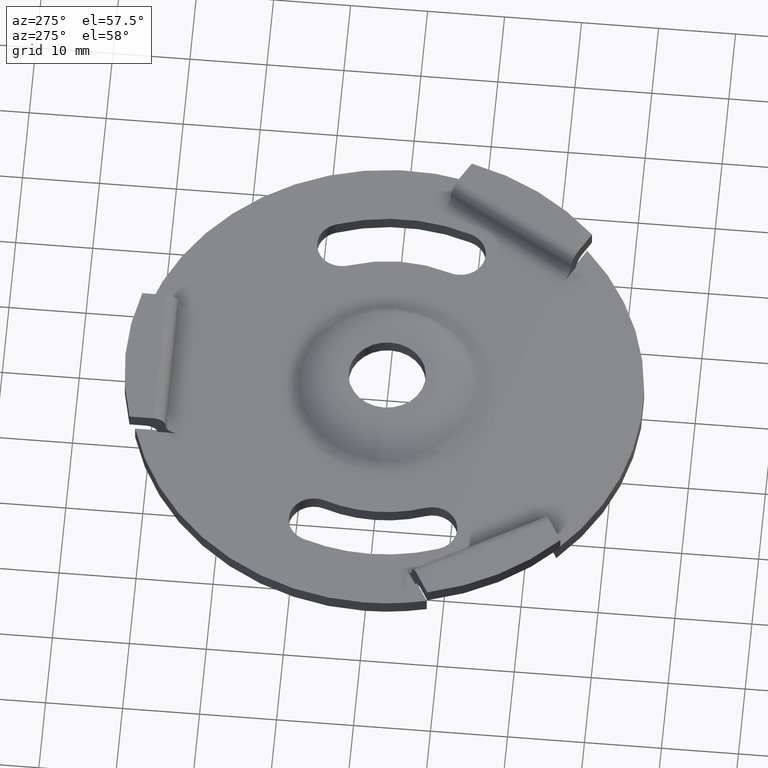
[diagram: clean part render]
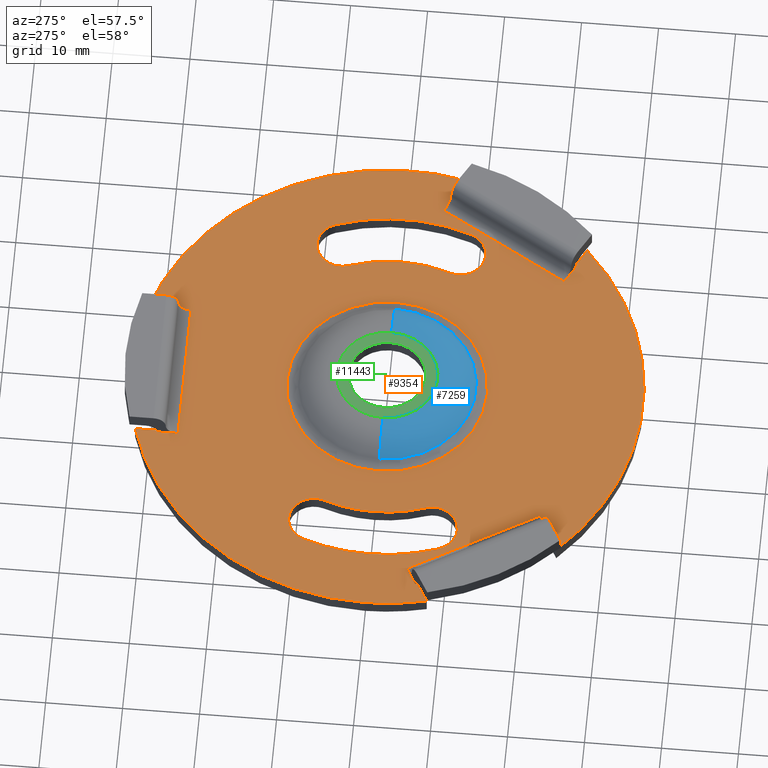
[diagram: same view with three faces highlighted in distinct colors, each labeled with its STEP entity id]
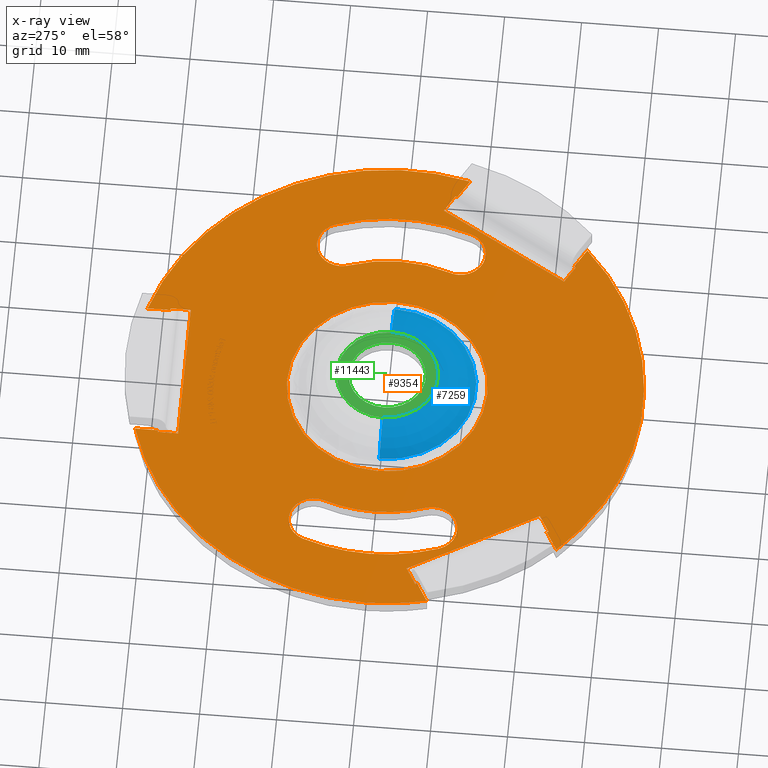
[diagram: x-ray of the same camera — body ghosted, the three highlighted faces saturated]
A machine part, auxiliary view with three faces highlighted in distinct colors.
The next image is the same camera in x-ray (body ghosted, the three faces saturated) — at least one of them is partly hidden behind the body in this view.
Their STEP definitions:

[orange] entity #9354 — the highlighted planar face has unit normal (0, 0, 1).
#14 = EDGE_CURVE ( 'NONE', #11242, #5522, #7318, .T. ) ;
#139 = CARTESIAN_POINT ( 'NONE',  ( -9.500000000000000000, 28.96581548079245749, 2.000000000000000000 ) ) ;
#187 = CIRCLE ( 'NONE', #1291, 19.25000000000013500 ) ;
#209 = DIRECTION ( 'NONE',  ( -0.8660254037844432595, 0.4999999999999919509, 0.000000000000000000 ) ) ;
#330 = CARTESIAN_POINT ( 'NONE',  ( -9.500000000000000000, 26.33743884534262847, 2.000000000000000000 ) ) ;
#425 = VERTEX_POINT ( 'NONE', #13483 ) ;
#433 = ORIENTED_EDGE ( 'NONE', *, *, #13645, .F. ) ;
#537 = ORIENTED_EDGE ( 'NONE', *, *, #2630, .T. ) ;
#637 = EDGE_CURVE ( 'NONE', #11732, #8392, #2801, .T. ) ;
#709 = CARTESIAN_POINT ( 'NONE',  ( 27.55889111068585251, -4.941478086718892548, 2.000000000000000000 ) ) ;
#744 = DIRECTION ( 'NONE',  ( -0.8660254037844363761, -0.5000000000000039968, 0.000000000000000000 ) ) ;
#751 = CIRCLE ( 'NONE', #5818, 19.25000000000013500 ) ;
#918 = CARTESIAN_POINT ( 'NONE',  ( -4.624999999999923617, -8.010734985006095599, 2.000000000000000000 ) ) ;
#936 = CARTESIAN_POINT ( 'NONE',  ( 20.46013204769904092, -22.49364272540208631, 2.000000000000000000 ) ) ;
#1025 = VERTEX_POINT ( 'NONE', #16962 ) ;
#1075 = DIRECTION ( 'NONE',  ( 1.000000000000000000, 0.000000000000000000, -0.000000000000000000 ) ) ;
#1083 = AXIS2_PLACEMENT_3D ( 'NONE', #8190, #9336, #6806 ) ;
#1104 = DIRECTION ( 'NONE',  ( -0.5000000000000041078, 0.8660254037844363761, 0.000000000000000000 ) ) ;
#1144 = VECTOR ( 'NONE', #10213, 1000.000000000000114 ) ;
#1161 = ORIENTED_EDGE ( 'NONE', *, *, #1848, .T. ) ;
#1291 = AXIS2_PLACEMENT_3D ( 'NONE', #11788, #1412, #6431 ) ;
#1314 = EDGE_CURVE ( 'NONE', #6346, #11591, #8154, .T. ) ;
#1322 = LINE ( 'NONE', #15483, #2964 ) ;
#1412 = DIRECTION ( 'NONE',  ( -0.000000000000000000, -0.000000000000000000, -1.000000000000000000 ) ) ;
#1442 = CARTESIAN_POINT ( 'NONE',  ( -29.71013204769881710, -6.472172755390321441, 2.000000000000000000 ) ) ;
#1453 = DIRECTION ( 'NONE',  ( -0.8660254037844374864, -0.5000000000000019984, 0.000000000000000000 ) ) ;
#1466 = VERTEX_POINT ( 'NONE', #8371 ) ;
#1523 = ORIENTED_EDGE ( 'NONE', *, *, #14598, .F. ) ;
#1582 = ORIENTED_EDGE ( 'NONE', *, *, #2095, .T. ) ;
#1651 = CARTESIAN_POINT ( 'NONE',  ( 21.14308396768296205, -7.695453224827473626, 2.000000000000000000 ) ) ;
#1668 = EDGE_CURVE ( 'NONE', #11591, #3075, #4637, .T. ) ;
#1693 = AXIS2_PLACEMENT_3D ( 'NONE', #7420, #8748, #3515 ) ;
#1726 = FACE_BOUND ( 'NONE', #10439, .T. ) ;
#1763 = DIRECTION ( 'NONE',  ( 1.000000000000000000, 0.000000000000000000, 0.000000000000000000 ) ) ;
#1848 = EDGE_CURVE ( 'NONE', #13175, #5613, #4014, .T. ) ;
#1859 = CARTESIAN_POINT ( 'NONE',  ( -18.05889111068571040, -21.39596075862357338, 2.000000000000000000 ) ) ;
#1868 = DIRECTION ( 'NONE',  ( -0.8660254037844363761, -0.5000000000000038858, 0.000000000000000000 ) ) ;
#1917 = CIRCLE ( 'NONE', #4845, 25.74999999999985789 ) ;
#2026 = DIRECTION ( 'NONE',  ( 1.000000000000000000, 0.000000000000000000, 0.000000000000000000 ) ) ;
#2029 = ORIENTED_EDGE ( 'NONE', *, *, #1668, .F. ) ;
#2030 = CARTESIAN_POINT ( 'NONE',  ( 29.83513204769888816, -6.255666404443783968, 2.000000000000000000 ) ) ;
#2077 = EDGE_CURVE ( 'NONE', #6993, #13175, #13273, .T. ) ;
#2095 = EDGE_CURVE ( 'NONE', #15615, #16457, #2603, .T. ) ;
#2106 = ORIENTED_EDGE ( 'NONE', *, *, #8341, .T. ) ;
#2111 = EDGE_CURVE ( 'NONE', #3075, #7814, #15947, .T. ) ;
#2333 = EDGE_CURVE ( 'NONE', #13516, #9541, #7922, .T. ) ;
#2423 = CARTESIAN_POINT ( 'NONE',  ( 9.500000000000000000, 28.96581548079246105, 2.000000000000000000 ) ) ;
#2494 = CARTESIAN_POINT ( 'NONE',  ( 0.000000000000000000, 0.000000000000000000, 2.000000000000000000 ) ) ;
#2501 = CARTESIAN_POINT ( 'NONE',  ( -27.55889111068578856, -4.941478086719275353, 2.000000000009549694 ) ) ;
#2585 = ORIENTED_EDGE ( 'NONE', *, *, #3936, .F. ) ;
#2592 = CARTESIAN_POINT ( 'NONE',  ( -21.14308396768296205, 7.695453224827473626, 2.000000000000000000 ) ) ;
#2603 = CIRCLE ( 'NONE', #2870, 33.25000000000000000 ) ;
#2630 = EDGE_CURVE ( 'NONE', #16829, #6113, #15720, .T. ) ;
#2687 = ORIENTED_EDGE ( 'NONE', *, *, #14, .F. ) ;
#2801 = LINE ( 'NONE', #7748, #7523 ) ;
#2870 = AXIS2_PLACEMENT_3D ( 'NONE', #14941, #16156, #2960 ) ;
#2896 = ORIENTED_EDGE ( 'NONE', *, *, #4411, .F. ) ;
#2937 = DIRECTION ( 'NONE',  ( 1.000000000000000000, 0.000000000000000000, 0.000000000000000000 ) ) ;
#2960 = DIRECTION ( 'NONE',  ( 1.000000000000000000, 0.000000000000000000, 0.000000000000000000 ) ) ;
#2964 = VECTOR ( 'NONE', #11695, 1000.000000000000000 ) ;
#2995 = EDGE_CURVE ( 'NONE', #11053, #1025, #751, .T. ) ;
#3022 = VECTOR ( 'NONE', #209, 1000.000000000000114 ) ;
#3053 = CARTESIAN_POINT ( 'NONE',  ( 1.471248585008598092E-13, 4.838270413349675722E-14, 2.000000000000000000 ) ) ;
#3075 = VERTEX_POINT ( 'NONE', #11131 ) ;
#3165 = VECTOR ( 'NONE', #9782, 1000.000000000000000 ) ;
#3194 = CARTESIAN_POINT ( 'NONE',  ( 21.14308396768296205, 7.695453224827473626, 2.000000000000000000 ) ) ;
#3301 = EDGE_CURVE ( 'NONE', #8392, #4935, #4193, .T. ) ;
#3418 = LINE ( 'NONE', #8247, #16972 ) ;
#3515 = DIRECTION ( 'NONE',  ( -1.000000000000000000, 0.000000000000000000, 0.000000000000000000 ) ) ;
#3550 = LINE ( 'NONE', #12523, #6846 ) ;
#3647 = CARTESIAN_POINT ( 'NONE',  ( 18.05889111068600883, -21.39596075862331048, 2.000000000009549694 ) ) ;
#3667 = LINE ( 'NONE', #1859, #14960 ) ;
#3714 = ORIENTED_EDGE ( 'NONE', *, *, #11754, .F. ) ;
#3762 = DIRECTION ( 'NONE',  ( 0.000000000000000000, 0.000000000000000000, 1.000000000000000000 ) ) ;
#3818 = DIRECTION ( 'NONE',  ( -1.000000000000000000, 0.000000000000000000, 0.000000000000000000 ) ) ;
#3936 = EDGE_CURVE ( 'NONE', #8944, #11053, #187, .T. ) ;
#4011 = CIRCLE ( 'NONE', #13064, 3.249999999999999556 ) ;
#4014 = LINE ( 'NONE', #7975, #8548 ) ;
#4061 = VECTOR ( 'NONE', #9287, 1000.000000000000000 ) ;
#4063 = DIRECTION ( 'NONE',  ( 0.000000000000000000, 0.000000000000000000, 1.000000000000000000 ) ) ;
#4105 = DIRECTION ( 'NONE',  ( 0.000000000000000000, 0.000000000000000000, 1.000000000000000000 ) ) ;
#4166 = EDGE_CURVE ( 'NONE', #4935, #16829, #3667, .T. ) ;
#4193 = LINE ( 'NONE', #6360, #14683 ) ;
#4401 = CARTESIAN_POINT ( 'NONE',  ( -13.00000000000000000, 1.592040838891559095E-15, 2.000000000000000000 ) ) ;
#4411 = EDGE_CURVE ( 'NONE', #6736, #7944, #7153, .T. ) ;
#4412 = DIRECTION ( 'NONE',  ( 0.000000000000000000, 0.000000000000000000, 1.000000000000000000 ) ) ;
#4420 = VECTOR ( 'NONE', #1868, 1000.000000000000114 ) ;
#4637 = CIRCLE ( 'NONE', #8720, 3.250000000000002665 ) ;
#4677 = VERTEX_POINT ( 'NONE', #14904 ) ;
#4686 = CARTESIAN_POINT ( 'NONE',  ( -33.25000000000000000, 0.000000000000000000, 2.000000000000000000 ) ) ;
#4780 = FACE_BOUND ( 'NONE', #9438, .T. ) ;
#4845 = AXIS2_PLACEMENT_3D ( 'NONE', #13127, #3762, #3818 ) ;
#4921 = CARTESIAN_POINT ( 'NONE',  ( 20.46013204769903737, -22.49364272540208987, 2.000000000000000000 ) ) ;
#4935 = VERTEX_POINT ( 'NONE', #2501 ) ;
#5128 = CARTESIAN_POINT ( 'NONE',  ( 21.14308396768296205, -7.695453224827473626, 2.000000000000000000 ) ) ;
#5214 = DIRECTION ( 'NONE',  ( 1.000000000000000000, 0.000000000000000000, 0.000000000000000000 ) ) ;
#5252 = ORIENTED_EDGE ( 'NONE', *, *, #11434, .T. ) ;
#5259 = EDGE_CURVE ( 'NONE', #8290, #10061, #6496, .T. ) ;
#5268 = CARTESIAN_POINT ( 'NONE',  ( 1.471248585008598092E-13, 4.838270413349675722E-14, 2.000000000000000000 ) ) ;
#5276 = DIRECTION ( 'NONE',  ( -0.000000000000000000, -0.000000000000000000, -1.000000000000000000 ) ) ;
#5388 = CIRCLE ( 'NONE', #1083, 33.25000000000000000 ) ;
#5441 = VERTEX_POINT ( 'NONE', #16403 ) ;
#5522 = VERTEX_POINT ( 'NONE', #9551 ) ;
#5613 = VERTEX_POINT ( 'NONE', #139 ) ;
#5628 = DIRECTION ( 'NONE',  ( 0.000000000000000000, -1.000000000000000000, 0.000000000000000000 ) ) ;
#5643 = ORIENTED_EDGE ( 'NONE', *, *, #11901, .T. ) ;
#5679 = DIRECTION ( 'NONE',  ( -0.000000000000000000, -0.000000000000000000, -1.000000000000000000 ) ) ;
#5690 = AXIS2_PLACEMENT_3D ( 'NONE', #15929, #15808, #6612 ) ;
#5745 = VERTEX_POINT ( 'NONE', #2030 ) ;
#5786 = DIRECTION ( 'NONE',  ( 1.000000000000000000, 0.000000000000000000, 0.000000000000000000 ) ) ;
#5818 = AXIS2_PLACEMENT_3D ( 'NONE', #3053, #5679, #5786 ) ;
#5877 = CARTESIAN_POINT ( 'NONE',  ( 29.83513204769888816, -6.255666404443783968, 2.000000000000000000 ) ) ;
#5921 = EDGE_LOOP ( 'NONE', ( #9016, #537, #16050, #9974, #16244, #14388, #8587, #6523, #8183, #5643, #16547, #2106, #8545, #2896, #10891, #6498, #14334, #1161, #7000, #10032, #1582, #11368, #9069, #11796, #15265 ) ) ;
#5976 = CARTESIAN_POINT ( 'NONE',  ( -9.500000000000000000, 28.96581548079245749, 2.000000000000000000 ) ) ;
#6088 = ORIENTED_EDGE ( 'NONE', *, *, #15840, .F. ) ;
#6113 = VERTEX_POINT ( 'NONE', #7556 ) ;
#6177 = VERTEX_POINT ( 'NONE', #13168 ) ;
#6346 = VERTEX_POINT ( 'NONE', #14657 ) ;
#6360 = CARTESIAN_POINT ( 'NONE',  ( -28.94453175674088641, -5.741478086719282281, 2.000000000009549694 ) ) ;
#6431 = DIRECTION ( 'NONE',  ( 1.000000000000000000, 0.000000000000000000, 0.000000000000000000 ) ) ;
#6436 = LINE ( 'NONE', #7678, #1144 ) ;
#6496 = CIRCLE ( 'NONE', #16140, 25.75000000000013500 ) ;
#6498 = ORIENTED_EDGE ( 'NONE', *, *, #9009, .T. ) ;
#6518 = ORIENTED_EDGE ( 'NONE', *, *, #11321, .F. ) ;
#6523 = ORIENTED_EDGE ( 'NONE', *, *, #10407, .T. ) ;
#6546 = CARTESIAN_POINT ( 'NONE',  ( 9.249999999999996447, 31.93743884534262634, 2.000000000000000000 ) ) ;
#6612 = DIRECTION ( 'NONE',  ( 1.000000000000000000, 0.000000000000000000, 0.000000000000000000 ) ) ;
#6620 = CARTESIAN_POINT ( 'NONE',  ( -19.24999999999998934, 4.838270413349675722E-14, 2.000000000000000000 ) ) ;
#6624 = VECTOR ( 'NONE', #16977, 999.9999999999998863 ) ;
#6736 = VERTEX_POINT ( 'NONE', #15660 ) ;
#6751 = CARTESIAN_POINT ( 'NONE',  ( -18.05889111068571395, -21.39596075862356983, 2.000000000000000000 ) ) ;
#6760 = CARTESIAN_POINT ( 'NONE',  ( 1.471248585008598092E-13, 4.838270413349675722E-14, 2.000000000000000000 ) ) ;
#6806 = DIRECTION ( 'NONE',  ( 1.000000000000000000, 0.000000000000000000, 0.000000000000000000 ) ) ;
#6846 = VECTOR ( 'NONE', #7211, 1000.000000000000000 ) ;
#6993 = VERTEX_POINT ( 'NONE', #10273 ) ;
#7000 = ORIENTED_EDGE ( 'NONE', *, *, #13985, .T. ) ;
#7002 = EDGE_CURVE ( 'NONE', #10388, #14209, #6436, .T. ) ;
#7095 = VERTEX_POINT ( 'NONE', #2423 ) ;
#7153 = LINE ( 'NONE', #7802, #4061 ) ;
#7211 = DIRECTION ( 'NONE',  ( 2.312964634635740689E-15, 1.000000000000000000, 0.000000000000000000 ) ) ;
#7318 = CIRCLE ( 'NONE', #1693, 3.250000000000002665 ) ;
#7420 = CARTESIAN_POINT ( 'NONE',  ( 21.14308396768296205, 7.695453224827473626, 2.000000000000000000 ) ) ;
#7513 = CARTESIAN_POINT ( 'NONE',  ( 4.624999999999978684, 8.010734985006152442, 2.000000000000000000 ) ) ;
#7523 = VECTOR ( 'NONE', #15707, 1000.000000000000000 ) ;
#7541 = LINE ( 'NONE', #10382, #14930 ) ;
#7556 = CARTESIAN_POINT ( 'NONE',  ( -20.33513204769873184, -22.71014907634849678, 2.000000000000000000 ) ) ;
#7562 = CARTESIAN_POINT ( 'NONE',  ( 23.03363337187888504, -23.97945440767715297, 2.000000000000000000 ) ) ;
#7597 = AXIS2_PLACEMENT_3D ( 'NONE', #3194, #15081, #12409 ) ;
#7678 = CARTESIAN_POINT ( 'NONE',  ( 27.55889111068585606, -4.941478086718888107, 2.000000000000000000 ) ) ;
#7689 = CIRCLE ( 'NONE', #7597, 3.250000000000002665 ) ;
#7691 = DIRECTION ( 'NONE',  ( 0.8660254037844363761, 0.5000000000000038858, -0.000000000000000000 ) ) ;
#7748 = CARTESIAN_POINT ( 'NONE',  ( -29.71013204769880645, -6.472172755390314336, 2.000000000000000000 ) ) ;
#7786 = DIRECTION ( 'NONE',  ( -1.000000000000000000, 0.000000000000000000, 0.000000000000000000 ) ) ;
#7802 = CARTESIAN_POINT ( 'NONE',  ( 9.249999999999996447, 0.000000000000000000, 2.000000000000000000 ) ) ;
#7814 = VERTEX_POINT ( 'NONE', #16182 ) ;
#7864 = CIRCLE ( 'NONE', #9469, 33.25000000000000000 ) ;
#7922 = CIRCLE ( 'NONE', #8812, 13.00000000000000000 ) ;
#7944 = VERTEX_POINT ( 'NONE', #6546 ) ;
#7975 = CARTESIAN_POINT ( 'NONE',  ( -9.500000000000000000, 28.93743884534263344, 2.000000000009549694 ) ) ;
#8033 = DIRECTION ( 'NONE',  ( -0.000000000000000000, -0.000000000000000000, -1.000000000000000000 ) ) ;
#8138 = DIRECTION ( 'NONE',  ( 0.8660254037844432595, -0.4999999999999919509, 0.000000000000000000 ) ) ;
#8143 = AXIS2_PLACEMENT_3D ( 'NONE', #1651, #8229, #10825 ) ;
#8154 = CIRCLE ( 'NONE', #16641, 19.24999999999985789 ) ;
#8183 = ORIENTED_EDGE ( 'NONE', *, *, #7002, .T. ) ;
#8190 = CARTESIAN_POINT ( 'NONE',  ( 0.000000000000000000, 0.000000000000000000, 2.000000000000000000 ) ) ;
#8229 = DIRECTION ( 'NONE',  ( 0.000000000000000000, 0.000000000000000000, 1.000000000000000000 ) ) ;
#8247 = CARTESIAN_POINT ( 'NONE',  ( 29.81055716052540916, -6.241478086718873719, 2.000000000009549694 ) ) ;
#8290 = VERTEX_POINT ( 'NONE', #11353 ) ;
#8305 = LINE ( 'NONE', #5976, #3165 ) ;
#8341 = EDGE_CURVE ( 'NONE', #1466, #5441, #9506, .T. ) ;
#8371 = CARTESIAN_POINT ( 'NONE',  ( 29.71013204769889526, -6.472172755389891563, 2.000000000000000000 ) ) ;
#8392 = VERTEX_POINT ( 'NONE', #11483 ) ;
#8504 = VERTEX_POINT ( 'NONE', #4921 ) ;
#8545 = ORIENTED_EDGE ( 'NONE', *, *, #10121, .T. ) ;
#8548 = VECTOR ( 'NONE', #9288, 1000.000000000000000 ) ;
#8587 = ORIENTED_EDGE ( 'NONE', *, *, #16744, .T. ) ;
#8720 = AXIS2_PLACEMENT_3D ( 'NONE', #5128, #15640, #7786 ) ;
#8748 = DIRECTION ( 'NONE',  ( 0.000000000000000000, 0.000000000000000000, 1.000000000000000000 ) ) ;
#8812 = AXIS2_PLACEMENT_3D ( 'NONE', #2494, #5276, #5214 ) ;
#8880 = CARTESIAN_POINT ( 'NONE',  ( 19.44453175674111378, -22.19596075862329698, 2.000000000009549694 ) ) ;
#8911 = EDGE_CURVE ( 'NONE', #16457, #13549, #11982, .T. ) ;
#8922 = CARTESIAN_POINT ( 'NONE',  ( 0.000000000000000000, 0.000000000000000000, 2.000000000000000000 ) ) ;
#8944 = VERTEX_POINT ( 'NONE', #9381 ) ;
#9009 = EDGE_CURVE ( 'NONE', #7095, #6993, #10966, .T. ) ;
#9016 = ORIENTED_EDGE ( 'NONE', *, *, #4166, .T. ) ;
#9069 = ORIENTED_EDGE ( 'NONE', *, *, #15727, .F. ) ;
#9287 = DIRECTION ( 'NONE',  ( 0.000000000000000000, 1.000000000000000000, -0.000000000000000000 ) ) ;
#9288 = DIRECTION ( 'NONE',  ( 0.000000000000000000, 1.000000000000000000, -0.000000000000000000 ) ) ;
#9336 = DIRECTION ( 'NONE',  ( 0.000000000000000000, 0.000000000000000000, 1.000000000000000000 ) ) ;
#9354 = ADVANCED_FACE ( 'NONE', ( #10347, #14855, #4780, #1726 ), #16777, .T. ) ;
#9381 = CARTESIAN_POINT ( 'NONE',  ( -18.08908295012874134, -6.583887759019055430, 2.000000000000000000 ) ) ;
#9400 = DIRECTION ( 'NONE',  ( 1.000000000000000000, 0.000000000000000000, 0.000000000000000000 ) ) ;
#9438 = EDGE_LOOP ( 'NONE', ( #6518, #1523, #11927, #2585, #3714, #11257 ) ) ;
#9469 = AXIS2_PLACEMENT_3D ( 'NONE', #14919, #4412, #2026 ) ;
#9506 = LINE ( 'NONE', #7513, #12616 ) ;
#9541 = VERTEX_POINT ( 'NONE', #14464 ) ;
#9551 = CARTESIAN_POINT ( 'NONE',  ( 17.89308396768295850, 7.695453224827473626, 2.000000000000000000 ) ) ;
#9782 = DIRECTION ( 'NONE',  ( 1.000000000000000000, 1.875376730785737719E-16, -0.000000000000000000 ) ) ;
#9824 = ORIENTED_EDGE ( 'NONE', *, *, #2111, .F. ) ;
#9864 = CARTESIAN_POINT ( 'NONE',  ( -4.625000000000036415, 8.010734985006033426, 2.000000000000000000 ) ) ;
#9974 = ORIENTED_EDGE ( 'NONE', *, *, #15530, .T. ) ;
#10032 = ORIENTED_EDGE ( 'NONE', *, *, #16396, .T. ) ;
#10061 = VERTEX_POINT ( 'NONE', #16052 ) ;
#10107 = DIRECTION ( 'NONE',  ( 1.000000000000000000, 0.000000000000000000, 0.000000000000000000 ) ) ;
#10121 = EDGE_CURVE ( 'NONE', #5441, #7944, #5388, .T. ) ;
#10204 = ORIENTED_EDGE ( 'NONE', *, *, #2333, .T. ) ;
#10213 = DIRECTION ( 'NONE',  ( 0.4999999999999919509, 0.8660254037844432595, -0.000000000000000000 ) ) ;
#10273 = CARTESIAN_POINT ( 'NONE',  ( 9.500000000000000000, 26.33743884534262847, 2.000000000009549694 ) ) ;
#10347 = FACE_BOUND ( 'NONE', #11778, .T. ) ;
#10382 = CARTESIAN_POINT ( 'NONE',  ( -20.33513204769873184, -22.71014907634849678, 2.000000000000000000 ) ) ;
#10388 = VERTEX_POINT ( 'NONE', #3647 ) ;
#10407 = EDGE_CURVE ( 'NONE', #6177, #10388, #14029, .T. ) ;
#10439 = EDGE_LOOP ( 'NONE', ( #13408, #433, #2687, #6088, #9824, #2029 ) ) ;
#10562 = VECTOR ( 'NONE', #1453, 999.9999999999998863 ) ;
#10575 = EDGE_CURVE ( 'NONE', #6113, #14408, #7541, .T. ) ;
#10742 = DIRECTION ( 'NONE',  ( 0.000000000000000000, 0.000000000000000000, 1.000000000000000000 ) ) ;
#10788 = AXIS2_PLACEMENT_3D ( 'NONE', #2592, #11770, #1763 ) ;
#10825 = DIRECTION ( 'NONE',  ( -1.000000000000000000, 0.000000000000000000, 0.000000000000000000 ) ) ;
#10891 = ORIENTED_EDGE ( 'NONE', *, *, #14618, .T. ) ;
#10966 = LINE ( 'NONE', #12205, #15042 ) ;
#11030 = CIRCLE ( 'NONE', #14821, 25.75000000000013500 ) ;
#11053 = VERTEX_POINT ( 'NONE', #6620 ) ;
#11131 = CARTESIAN_POINT ( 'NONE',  ( 17.89308396768295850, -7.695453224827473626, 2.000000000000000000 ) ) ;
#11242 = VERTEX_POINT ( 'NONE', #15460 ) ;
#11255 = CARTESIAN_POINT ( 'NONE',  ( -9.500000000000000000, 26.33743884534262847, 2.000000000000000000 ) ) ;
#11257 = ORIENTED_EDGE ( 'NONE', *, *, #5259, .F. ) ;
#11305 = DIRECTION ( 'NONE',  ( -0.000000000000000000, -0.000000000000000000, -1.000000000000000000 ) ) ;
#11321 = EDGE_CURVE ( 'NONE', #11467, #8290, #11030, .T. ) ;
#11332 = DIRECTION ( 'NONE',  ( -0.4999999999999918399, -0.8660254037844434816, 0.000000000000000000 ) ) ;
#11353 = CARTESIAN_POINT ( 'NONE',  ( -25.74999999999998934, 4.838270413349675722E-14, 2.000000000000000000 ) ) ;
#11368 = ORIENTED_EDGE ( 'NONE', *, *, #8911, .T. ) ;
#11430 = CARTESIAN_POINT ( 'NONE',  ( 0.000000000000000000, 0.000000000000000000, 2.000000000000000000 ) ) ;
#11434 = EDGE_CURVE ( 'NONE', #9541, #13516, #15737, .T. ) ;
#11467 = VERTEX_POINT ( 'NONE', #12715 ) ;
#11483 = CARTESIAN_POINT ( 'NONE',  ( -29.83513204769881000, -6.255666404444204076, 2.000000000000000000 ) ) ;
#11591 = VERTEX_POINT ( 'NONE', #11710 ) ;
#11695 = DIRECTION ( 'NONE',  ( 1.000000000000000000, 1.875376730785737719E-16, -0.000000000000000000 ) ) ;
#11710 = CARTESIAN_POINT ( 'NONE',  ( 18.08908295012875200, -6.583887759019061647, 2.000000000000000000 ) ) ;
#11732 = VERTEX_POINT ( 'NONE', #1442 ) ;
#11754 = EDGE_CURVE ( 'NONE', #10061, #8944, #4011, .T. ) ;
#11770 = DIRECTION ( 'NONE',  ( 0.000000000000000000, 0.000000000000000000, 1.000000000000000000 ) ) ;
#11778 = EDGE_LOOP ( 'NONE', ( #5252, #10204 ) ) ;
#11788 = CARTESIAN_POINT ( 'NONE',  ( 1.471248585008598092E-13, 4.838270413349675722E-14, 2.000000000000000000 ) ) ;
#11796 = ORIENTED_EDGE ( 'NONE', *, *, #637, .T. ) ;
#11901 = EDGE_CURVE ( 'NONE', #14209, #5745, #3418, .T. ) ;
#11927 = ORIENTED_EDGE ( 'NONE', *, *, #2995, .F. ) ;
#11982 = CIRCLE ( 'NONE', #5690, 33.25000000000000000 ) ;
#12138 = EDGE_CURVE ( 'NONE', #8504, #16875, #16541, .T. ) ;
#12157 = DIRECTION ( 'NONE',  ( -1.000000000000000000, 0.000000000000000000, 0.000000000000000000 ) ) ;
#12205 = CARTESIAN_POINT ( 'NONE',  ( 9.500000000000000000, 27.93743884534262634, 2.000000000009549694 ) ) ;
#12299 = CARTESIAN_POINT ( 'NONE',  ( -9.249999999999996447, 31.93743884534262634, 2.000000000000000000 ) ) ;
#12409 = DIRECTION ( 'NONE',  ( -1.000000000000000000, 0.000000000000000000, 0.000000000000000000 ) ) ;
#12421 = LINE ( 'NONE', #9864, #12838 ) ;
#12523 = CARTESIAN_POINT ( 'NONE',  ( -9.250000000000071054, 2.139492287038076388E-14, 2.000000000000000000 ) ) ;
#12613 = LINE ( 'NONE', #13368, #10562 ) ;
#12616 = VECTOR ( 'NONE', #12708, 1000.000000000000000 ) ;
#12640 = EDGE_CURVE ( 'NONE', #5745, #1466, #14482, .T. ) ;
#12708 = DIRECTION ( 'NONE',  ( 0.8660254037844421493, -0.4999999999999939493, 0.000000000000000000 ) ) ;
#12715 = CARTESIAN_POINT ( 'NONE',  ( -24.19708498523717921, 8.807018690635898039, 2.000000000000000000 ) ) ;
#12838 = VECTOR ( 'NONE', #744, 999.9999999999998863 ) ;
#13064 = AXIS2_PLACEMENT_3D ( 'NONE', #15709, #4105, #9400 ) ;
#13127 = CARTESIAN_POINT ( 'NONE',  ( 1.471248585008598092E-13, 4.838270413349675722E-14, 2.000000000000000000 ) ) ;
#13168 = CARTESIAN_POINT ( 'NONE',  ( 20.33513204769904448, -22.71014907634820545, 2.000000000000000000 ) ) ;
#13175 = VERTEX_POINT ( 'NONE', #11255 ) ;
#13273 = LINE ( 'NONE', #330, #16347 ) ;
#13368 = CARTESIAN_POINT ( 'NONE',  ( 4.625000000000055067, -8.010734985006109810, 2.000000000000000000 ) ) ;
#13408 = ORIENTED_EDGE ( 'NONE', *, *, #1314, .F. ) ;
#13483 = CARTESIAN_POINT ( 'NONE',  ( -23.03363337187856175, -23.97945440767747982, 2.000000000000000000 ) ) ;
#13516 = VERTEX_POINT ( 'NONE', #4401 ) ;
#13549 = VERTEX_POINT ( 'NONE', #16233 ) ;
#13645 = EDGE_CURVE ( 'NONE', #5522, #6346, #7689, .T. ) ;
#13985 = EDGE_CURVE ( 'NONE', #5613, #4677, #8305, .T. ) ;
#13997 = DIRECTION ( 'NONE',  ( 0.8660254037844432595, -0.4999999999999919509, 0.000000000000000000 ) ) ;
#14029 = LINE ( 'NONE', #8880, #3022 ) ;
#14031 = DIRECTION ( 'NONE',  ( 0.000000000000000000, 0.000000000000000000, 1.000000000000000000 ) ) ;
#14038 = AXIS2_PLACEMENT_3D ( 'NONE', #8922, #14031, #1075 ) ;
#14209 = VERTEX_POINT ( 'NONE', #709 ) ;
#14295 = VECTOR ( 'NONE', #11332, 999.9999999999998863 ) ;
#14334 = ORIENTED_EDGE ( 'NONE', *, *, #2077, .T. ) ;
#14388 = ORIENTED_EDGE ( 'NONE', *, *, #12138, .F. ) ;
#14408 = VERTEX_POINT ( 'NONE', #15509 ) ;
#14464 = CARTESIAN_POINT ( 'NONE',  ( 13.00000000000000000, 0.000000000000000000, 2.000000000000000000 ) ) ;
#14482 = LINE ( 'NONE', #5877, #14295 ) ;
#14598 = EDGE_CURVE ( 'NONE', #1025, #11467, #16916, .T. ) ;
#14618 = EDGE_CURVE ( 'NONE', #6736, #7095, #1322, .T. ) ;
#14623 = DIRECTION ( 'NONE',  ( -1.000000000000000000, 0.000000000000000000, 0.000000000000000000 ) ) ;
#14657 = CARTESIAN_POINT ( 'NONE',  ( 18.08908295012876621, 6.583887759019068753, 2.000000000000000000 ) ) ;
#14683 = VECTOR ( 'NONE', #7691, 1000.000000000000114 ) ;
#14698 = VECTOR ( 'NONE', #13997, 1000.000000000000000 ) ;
#14699 = CARTESIAN_POINT ( 'NONE',  ( 1.471248585008598092E-13, 4.838270413349675722E-14, 2.000000000000000000 ) ) ;
#14821 = AXIS2_PLACEMENT_3D ( 'NONE', #14699, #10742, #2937 ) ;
#14855 = FACE_OUTER_BOUND ( 'NONE', #5921, .T. ) ;
#14904 = CARTESIAN_POINT ( 'NONE',  ( -9.250000000000003553, 28.96581548079245394, 2.000000000000000000 ) ) ;
#14919 = CARTESIAN_POINT ( 'NONE',  ( 0.000000000000000000, 0.000000000000000000, 2.000000000000000000 ) ) ;
#14930 = VECTOR ( 'NONE', #1104, 1000.000000000000000 ) ;
#14941 = CARTESIAN_POINT ( 'NONE',  ( 0.000000000000000000, 0.000000000000000000, 2.000000000000000000 ) ) ;
#14960 = VECTOR ( 'NONE', #15210, 1000.000000000000114 ) ;
#15042 = VECTOR ( 'NONE', #5628, 1000.000000000000000 ) ;
#15081 = DIRECTION ( 'NONE',  ( 0.000000000000000000, 0.000000000000000000, 1.000000000000000000 ) ) ;
#15148 = AXIS2_PLACEMENT_3D ( 'NONE', #11430, #11305, #10107 ) ;
#15210 = DIRECTION ( 'NONE',  ( 0.5000000000000038858, -0.8660254037844363761, 0.000000000000000000 ) ) ;
#15259 = LINE ( 'NONE', #936, #6624 ) ;
#15265 = ORIENTED_EDGE ( 'NONE', *, *, #3301, .T. ) ;
#15460 = CARTESIAN_POINT ( 'NONE',  ( 24.19708498523717921, 8.807018690635887381, 2.000000000000000000 ) ) ;
#15483 = CARTESIAN_POINT ( 'NONE',  ( 9.249999999999996447, 28.96581548079245749, 2.000000000000000000 ) ) ;
#15509 = CARTESIAN_POINT ( 'NONE',  ( -20.46013204769874605, -22.49364272540239895, 2.000000000000000000 ) ) ;
#15530 = EDGE_CURVE ( 'NONE', #14408, #425, #12613, .T. ) ;
#15615 = VERTEX_POINT ( 'NONE', #12299 ) ;
#15640 = DIRECTION ( 'NONE',  ( 0.000000000000000000, 0.000000000000000000, 1.000000000000000000 ) ) ;
#15660 = CARTESIAN_POINT ( 'NONE',  ( 9.249999999999996447, 28.96581548079245749, 2.000000000000000000 ) ) ;
#15707 = DIRECTION ( 'NONE',  ( -0.5000000000000041078, 0.8660254037844363761, 0.000000000000000000 ) ) ;
#15709 = CARTESIAN_POINT ( 'NONE',  ( -21.14308396768296205, -7.695453224827473626, 2.000000000000000000 ) ) ;
#15720 = LINE ( 'NONE', #16313, #4420 ) ;
#15727 = EDGE_CURVE ( 'NONE', #11732, #13549, #12421, .T. ) ;
#15737 = CIRCLE ( 'NONE', #15148, 13.00000000000000000 ) ;
#15808 = DIRECTION ( 'NONE',  ( 0.000000000000000000, 0.000000000000000000, 1.000000000000000000 ) ) ;
#15840 = EDGE_CURVE ( 'NONE', #7814, #11242, #1917, .T. ) ;
#15929 = CARTESIAN_POINT ( 'NONE',  ( 0.000000000000000000, 0.000000000000000000, 2.000000000000000000 ) ) ;
#15947 = CIRCLE ( 'NONE', #8143, 3.250000000000002665 ) ;
#15966 = DIRECTION ( 'NONE',  ( 1.000000000000000000, 0.000000000000000000, 0.000000000000000000 ) ) ;
#16050 = ORIENTED_EDGE ( 'NONE', *, *, #10575, .T. ) ;
#16052 = CARTESIAN_POINT ( 'NONE',  ( -24.19708498523715434, -8.807018690635880276, 2.000000000000000000 ) ) ;
#16140 = AXIS2_PLACEMENT_3D ( 'NONE', #5268, #4063, #15966 ) ;
#16156 = DIRECTION ( 'NONE',  ( 0.000000000000000000, 0.000000000000000000, 1.000000000000000000 ) ) ;
#16182 = CARTESIAN_POINT ( 'NONE',  ( 24.19708498523715434, -8.807018690635869618, 2.000000000000000000 ) ) ;
#16233 = CARTESIAN_POINT ( 'NONE',  ( -32.28363337187862214, -7.957984437665406752, 2.000000000000000000 ) ) ;
#16244 = ORIENTED_EDGE ( 'NONE', *, *, #16621, .T. ) ;
#16313 = CARTESIAN_POINT ( 'NONE',  ( -20.31055716052525284, -22.69596075862358120, 2.000000000009549694 ) ) ;
#16347 = VECTOR ( 'NONE', #12157, 1000.000000000000000 ) ;
#16396 = EDGE_CURVE ( 'NONE', #4677, #15615, #3550, .T. ) ;
#16403 = CARTESIAN_POINT ( 'NONE',  ( 32.28363337187873583, -7.957984437664960886, 2.000000000000000000 ) ) ;
#16457 = VERTEX_POINT ( 'NONE', #4686 ) ;
#16541 = LINE ( 'NONE', #918, #14698 ) ;
#16547 = ORIENTED_EDGE ( 'NONE', *, *, #12640, .T. ) ;
#16621 = EDGE_CURVE ( 'NONE', #425, #16875, #7864, .T. ) ;
#16641 = AXIS2_PLACEMENT_3D ( 'NONE', #6760, #8033, #14623 ) ;
#16744 = EDGE_CURVE ( 'NONE', #8504, #6177, #15259, .T. ) ;
#16777 = PLANE ( 'NONE',  #14038 ) ;
#16829 = VERTEX_POINT ( 'NONE', #6751 ) ;
#16875 = VERTEX_POINT ( 'NONE', #7562 ) ;
#16916 = CIRCLE ( 'NONE', #10788, 3.249999999999999556 ) ;
#16962 = CARTESIAN_POINT ( 'NONE',  ( -18.08908295012876977, 6.583887759019067865, 2.000000000000000000 ) ) ;
#16972 = VECTOR ( 'NONE', #8138, 1000.000000000000114 ) ;
#16977 = DIRECTION ( 'NONE',  ( -0.4999999999999918399, -0.8660254037844434816, 0.000000000000000000 ) ) ;

[blue] entity #7259 — the highlighted toroidal blend (fillet) surface has major radius 6.5626 mm and minor (blend) radius 6.8 mm.
#127 = CIRCLE ( 'NONE', #13726, 11.53695664186990655 ) ;
#238 = EDGE_CURVE ( 'NONE', #16039, #6724, #13902, .T. ) ;
#496 = CARTESIAN_POINT ( 'NONE',  ( 6.562609224227568205, 1.108278770193647958E-15, 4.800000000000000711 ) ) ;
#1764 = DIRECTION ( 'NONE',  ( -1.000000000000000000, 0.000000000000000000, 0.000000000000000000 ) ) ;
#2025 = AXIS2_PLACEMENT_3D ( 'NONE', #11235, #4688, #9972 ) ;
#2365 = TOROIDAL_SURFACE ( 'NONE', #3619, 6.562609224227568205, 6.799999999999999822 ) ;
#2982 = EDGE_CURVE ( 'NONE', #16700, #16039, #12453, .T. ) ;
#3619 = AXIS2_PLACEMENT_3D ( 'NONE', #4271, #9443, #1764 ) ;
#3663 = VERTEX_POINT ( 'NONE', #15683 ) ;
#4212 = ORIENTED_EDGE ( 'NONE', *, *, #5491, .F. ) ;
#4271 = CARTESIAN_POINT ( 'NONE',  ( 0.000000000000000000, 0.000000000000000000, -1.999999999999999112 ) ) ;
#4688 = DIRECTION ( 'NONE',  ( -1.224646799147353207E-16, 1.000000000000000000, 0.000000000000000000 ) ) ;
#5112 = DIRECTION ( 'NONE',  ( 0.000000000000000000, 0.000000000000000000, -1.000000000000000000 ) ) ;
#5419 = CIRCLE ( 'NONE', #15517, 6.799999999999999822 ) ;
#5463 = CARTESIAN_POINT ( 'NONE',  ( -6.562609224227568205, 0.000000000000000000, -1.999999999999999112 ) ) ;
#5491 = EDGE_CURVE ( 'NONE', #6724, #3663, #127, .T. ) ;
#6482 = CARTESIAN_POINT ( 'NONE',  ( 11.53695664186990655, 0.000000000000000000, 2.636363636363644236 ) ) ;
#6724 = VERTEX_POINT ( 'NONE', #6482 ) ;
#7259 = ADVANCED_FACE ( 'NONE', ( #10561 ), #2365, .T. ) ;
#8103 = DIRECTION ( 'NONE',  ( 1.000000000000000000, 0.000000000000000000, 0.000000000000000000 ) ) ;
#9443 = DIRECTION ( 'NONE',  ( -0.000000000000000000, -0.000000000000000000, -1.000000000000000000 ) ) ;
#9972 = DIRECTION ( 'NONE',  ( -1.000000000000000000, -1.224646799147353207E-16, 0.000000000000000000 ) ) ;
#10561 = FACE_OUTER_BOUND ( 'NONE', #15012, .T. ) ;
#11235 = CARTESIAN_POINT ( 'NONE',  ( 6.562609224227568205, 8.036878380505186569E-16, -1.999999999999999112 ) ) ;
#11961 = DIRECTION ( 'NONE',  ( 0.000000000000000000, 0.000000000000000000, 1.000000000000000000 ) ) ;
#12340 = AXIS2_PLACEMENT_3D ( 'NONE', #15973, #11961, #8103 ) ;
#12453 = CIRCLE ( 'NONE', #12340, 6.562609224227568205 ) ;
#12535 = CARTESIAN_POINT ( 'NONE',  ( -6.562609224227568205, 0.000000000000000000, 4.800000000000000711 ) ) ;
#13046 = ORIENTED_EDGE ( 'NONE', *, *, #238, .F. ) ;
#13726 = AXIS2_PLACEMENT_3D ( 'NONE', #16046, #16099, #14731 ) ;
#13902 = CIRCLE ( 'NONE', #2025, 6.799999999999999822 ) ;
#14065 = EDGE_CURVE ( 'NONE', #16700, #3663, #5419, .T. ) ;
#14648 = DIRECTION ( 'NONE',  ( 0.000000000000000000, -1.000000000000000000, 0.000000000000000000 ) ) ;
#14731 = DIRECTION ( 'NONE',  ( 1.000000000000000000, 0.000000000000000000, 0.000000000000000000 ) ) ;
#14768 = ORIENTED_EDGE ( 'NONE', *, *, #14065, .T. ) ;
#15012 = EDGE_LOOP ( 'NONE', ( #13046, #15493, #14768, #4212 ) ) ;
#15493 = ORIENTED_EDGE ( 'NONE', *, *, #2982, .F. ) ;
#15517 = AXIS2_PLACEMENT_3D ( 'NONE', #5463, #14648, #5112 ) ;
#15683 = CARTESIAN_POINT ( 'NONE',  ( -11.53695664186990477, 1.502455270614168473E-15, 2.636363636363644236 ) ) ;
#15973 = CARTESIAN_POINT ( 'NONE',  ( 0.000000000000000000, 0.000000000000000000, 4.800000000000000711 ) ) ;
#16039 = VERTEX_POINT ( 'NONE', #496 ) ;
#16046 = CARTESIAN_POINT ( 'NONE',  ( 0.000000000000000000, 0.000000000000000000, 2.636363636363644236 ) ) ;
#16099 = DIRECTION ( 'NONE',  ( -0.000000000000000000, -0.000000000000000000, -1.000000000000000000 ) ) ;
#16700 = VERTEX_POINT ( 'NONE', #12535 ) ;

[green] entity #11443 — the highlighted planar face has unit normal (0, 0, 1).
#47 = EDGE_LOOP ( 'NONE', ( #3435, #2308 ) ) ;
#276 = CARTESIAN_POINT ( 'NONE',  ( 0.000000000000000000, 0.000000000000000000, 4.800000000000000711 ) ) ;
#496 = CARTESIAN_POINT ( 'NONE',  ( 6.562609224227568205, 1.108278770193647958E-15, 4.800000000000000711 ) ) ;
#1005 = CARTESIAN_POINT ( 'NONE',  ( 5.000000000000000000, 0.000000000000000000, 4.800000000000000711 ) ) ;
#1933 = CIRCLE ( 'NONE', #7572, 5.000000000000000000 ) ;
#2024 = CARTESIAN_POINT ( 'NONE',  ( -5.000000000000000000, 6.123233995736766282E-16, 4.800000000000000711 ) ) ;
#2308 = ORIENTED_EDGE ( 'NONE', *, *, #7253, .F. ) ;
#2982 = EDGE_CURVE ( 'NONE', #16700, #16039, #12453, .T. ) ;
#3435 = ORIENTED_EDGE ( 'NONE', *, *, #14401, .F. ) ;
#3442 = PLANE ( 'NONE',  #6243 ) ;
#5249 = FACE_OUTER_BOUND ( 'NONE', #7188, .T. ) ;
#5674 = CARTESIAN_POINT ( 'NONE',  ( 0.000000000000000000, 0.000000000000000000, 4.800000000000000711 ) ) ;
#6131 = DIRECTION ( 'NONE',  ( 1.000000000000000000, 0.000000000000000000, -0.000000000000000000 ) ) ;
#6243 = AXIS2_PLACEMENT_3D ( 'NONE', #8558, #7458, #6131 ) ;
#6374 = AXIS2_PLACEMENT_3D ( 'NONE', #14024, #16825, #7531 ) ;
#7188 = EDGE_LOOP ( 'NONE', ( #13452, #10560 ) ) ;
#7253 = EDGE_CURVE ( 'NONE', #9891, #11669, #1933, .T. ) ;
#7458 = DIRECTION ( 'NONE',  ( 0.000000000000000000, 0.000000000000000000, 1.000000000000000000 ) ) ;
#7470 = CIRCLE ( 'NONE', #6374, 5.000000000000000000 ) ;
#7531 = DIRECTION ( 'NONE',  ( 1.000000000000000000, 0.000000000000000000, 0.000000000000000000 ) ) ;
#7572 = AXIS2_PLACEMENT_3D ( 'NONE', #276, #9612, #14886 ) ;
#8103 = DIRECTION ( 'NONE',  ( 1.000000000000000000, 0.000000000000000000, 0.000000000000000000 ) ) ;
#8212 = EDGE_CURVE ( 'NONE', #16039, #16700, #16905, .T. ) ;
#8343 = AXIS2_PLACEMENT_3D ( 'NONE', #5674, #14859, #9635 ) ;
#8558 = CARTESIAN_POINT ( 'NONE',  ( 0.000000000000000000, 0.000000000000000000, 4.800000000000000711 ) ) ;
#9612 = DIRECTION ( 'NONE',  ( 0.000000000000000000, 0.000000000000000000, 1.000000000000000000 ) ) ;
#9635 = DIRECTION ( 'NONE',  ( 1.000000000000000000, 0.000000000000000000, 0.000000000000000000 ) ) ;
#9891 = VERTEX_POINT ( 'NONE', #2024 ) ;
#10560 = ORIENTED_EDGE ( 'NONE', *, *, #8212, .T. ) ;
#11443 = ADVANCED_FACE ( 'NONE', ( #12270, #5249 ), #3442, .T. ) ;
#11669 = VERTEX_POINT ( 'NONE', #1005 ) ;
#11961 = DIRECTION ( 'NONE',  ( 0.000000000000000000, 0.000000000000000000, 1.000000000000000000 ) ) ;
#12270 = FACE_BOUND ( 'NONE', #47, .T. ) ;
#12340 = AXIS2_PLACEMENT_3D ( 'NONE', #15973, #11961, #8103 ) ;
#12453 = CIRCLE ( 'NONE', #12340, 6.562609224227568205 ) ;
#12535 = CARTESIAN_POINT ( 'NONE',  ( -6.562609224227568205, 0.000000000000000000, 4.800000000000000711 ) ) ;
#13452 = ORIENTED_EDGE ( 'NONE', *, *, #2982, .T. ) ;
#14024 = CARTESIAN_POINT ( 'NONE',  ( 0.000000000000000000, 0.000000000000000000, 4.800000000000000711 ) ) ;
#14401 = EDGE_CURVE ( 'NONE', #11669, #9891, #7470, .T. ) ;
#14859 = DIRECTION ( 'NONE',  ( 0.000000000000000000, 0.000000000000000000, 1.000000000000000000 ) ) ;
#14886 = DIRECTION ( 'NONE',  ( 1.000000000000000000, 0.000000000000000000, 0.000000000000000000 ) ) ;
#15973 = CARTESIAN_POINT ( 'NONE',  ( 0.000000000000000000, 0.000000000000000000, 4.800000000000000711 ) ) ;
#16039 = VERTEX_POINT ( 'NONE', #496 ) ;
#16700 = VERTEX_POINT ( 'NONE', #12535 ) ;
#16825 = DIRECTION ( 'NONE',  ( 0.000000000000000000, 0.000000000000000000, 1.000000000000000000 ) ) ;
#16905 = CIRCLE ( 'NONE', #8343, 6.562609224227568205 ) ;